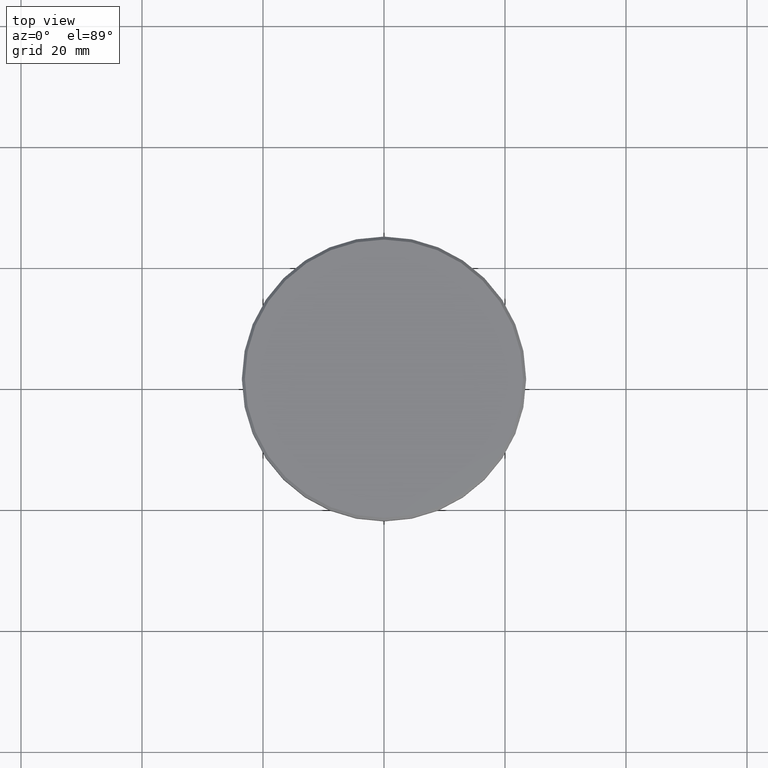
[diagram: clean part render]
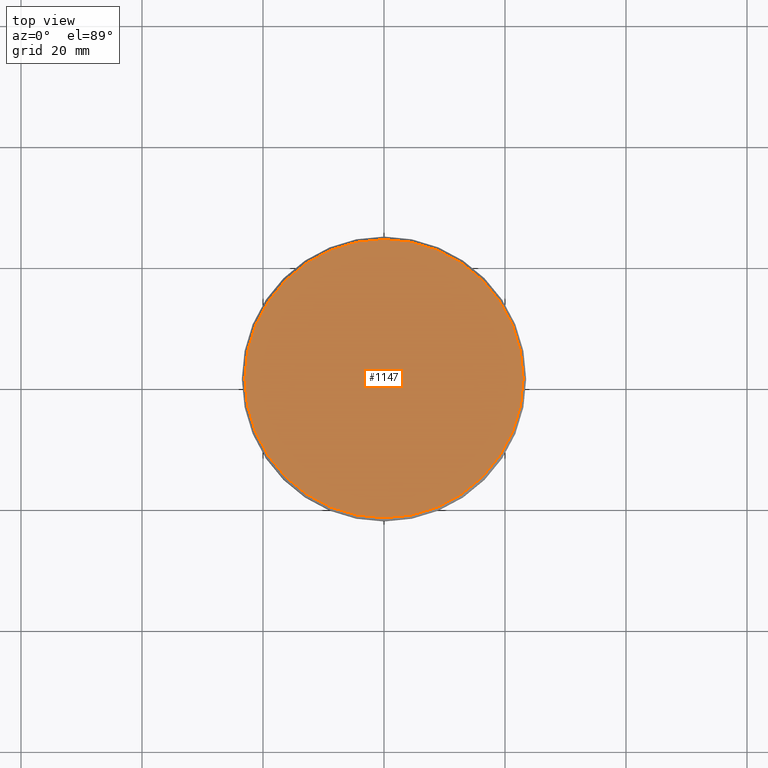
[diagram: same view with one face highlighted and labeled with its STEP entity id]
A machine part, top view. The second image highlights one B-rep face of the part: STEP entity #1147.
In plain terms, the highlighted planar face has unit normal (0, -0, 1).
Its self-contained STEP definition (entity closure, byte-faithful):
#21 = EDGE_LOOP ( 'NONE', ( #87, #252 ) ) ;
#48 = CARTESIAN_POINT ( 'NONE',  ( 0.000000000000000000, 0.000000000000000000, 0.000000000000000000 ) ) ;
#54 = DIRECTION ( 'NONE',  ( -0.000000000000000000, -0.000000000000000000, 1.000000000000000000 ) ) ;
#87 = ORIENTED_EDGE ( 'NONE', *, *, #160, .T. ) ;
#160 = EDGE_CURVE ( 'NONE', #1076, #162, #857, .T. ) ;
#162 = VERTEX_POINT ( 'NONE', #906 ) ;
#205 = DIRECTION ( 'NONE',  ( -0.000000000000000000, -0.000000000000000000, 1.000000000000000000 ) ) ;
#252 = ORIENTED_EDGE ( 'NONE', *, *, #1019, .T. ) ;
#328 = CIRCLE ( 'NONE', #812, 22.99999999999998224 ) ;
#360 = CARTESIAN_POINT ( 'NONE',  ( -22.99999999999998224, 0.000000000000000000, 0.000000000000000000 ) ) ;
#410 = PLANE ( 'NONE',  #417 ) ;
#417 = AXIS2_PLACEMENT_3D ( 'NONE', #48, #580, #941 ) ;
#559 = DIRECTION ( 'NONE',  ( 1.000000000000000000, 0.000000000000000000, 0.000000000000000000 ) ) ;
#580 = DIRECTION ( 'NONE',  ( 0.000000000000000000, -0.000000000000000000, 1.000000000000000000 ) ) ;
#745 = CARTESIAN_POINT ( 'NONE',  ( 0.000000000000000000, 0.000000000000000000, 0.000000000000000000 ) ) ;
#783 = AXIS2_PLACEMENT_3D ( 'NONE', #961, #54, #814 ) ;
#812 = AXIS2_PLACEMENT_3D ( 'NONE', #745, #205, #559 ) ;
#814 = DIRECTION ( 'NONE',  ( 1.000000000000000000, 0.000000000000000000, 0.000000000000000000 ) ) ;
#857 = CIRCLE ( 'NONE', #783, 22.99999999999998224 ) ;
#906 = CARTESIAN_POINT ( 'NONE',  ( 22.99999999999998224, 2.847303808017595350E-15, 0.000000000000000000 ) ) ;
#941 = DIRECTION ( 'NONE',  ( 1.000000000000000000, 0.000000000000000000, 0.000000000000000000 ) ) ;
#961 = CARTESIAN_POINT ( 'NONE',  ( 0.000000000000000000, 0.000000000000000000, 0.000000000000000000 ) ) ;
#1019 = EDGE_CURVE ( 'NONE', #162, #1076, #328, .T. ) ;
#1036 = FACE_OUTER_BOUND ( 'NONE', #21, .T. ) ;
#1076 = VERTEX_POINT ( 'NONE', #360 ) ;
#1147 = ADVANCED_FACE ( 'NONE', ( #1036 ), #410, .T. ) ;